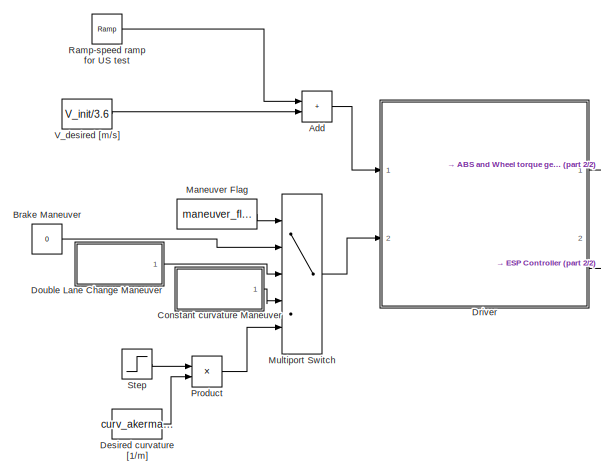
[diagram: root canvas - part 1/2, left side, full height]
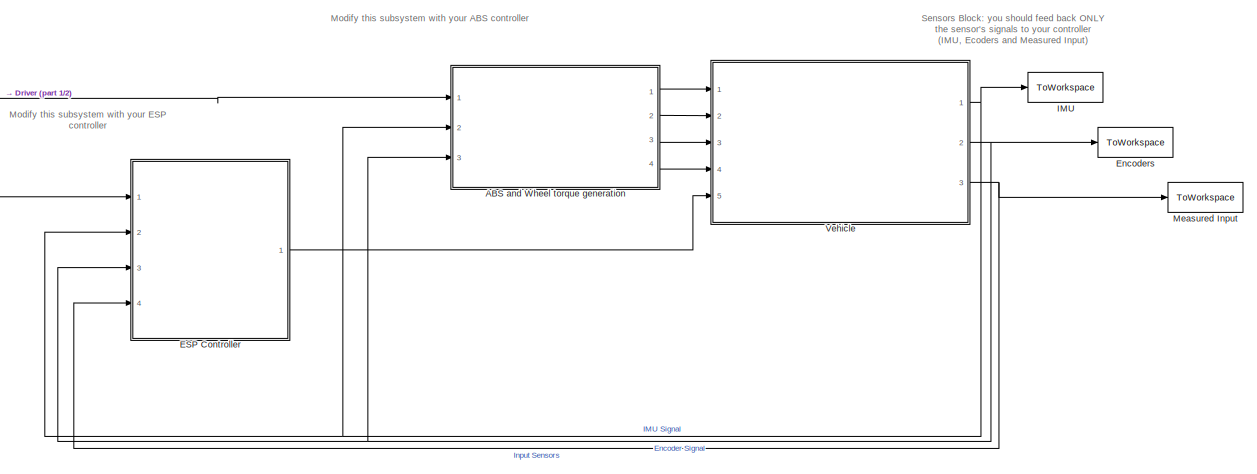
[diagram: root canvas - part 2/2, center side, full height]
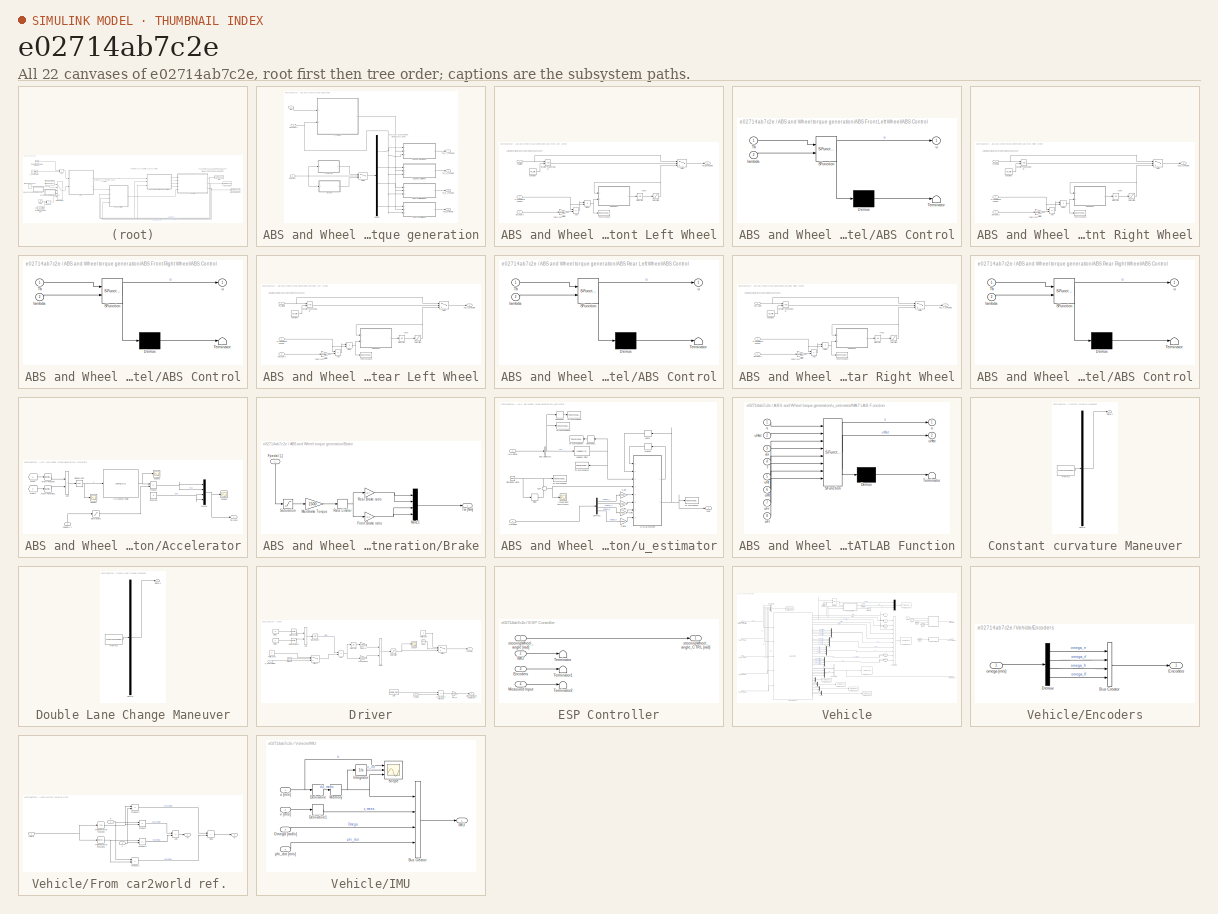
[diagram: thumbnail index - all 22 canvases of the model, root first then tree order]
MODEL slx_e02714ab7c2e
KIND model
CONFIG AbsTol = auto
CONFIG EnableMultiTasking = off
CONFIG FixedStep = auto
CONFIG MaxStep = 0.1
CONFIG MinStep = auto
CONFIG RelTol = 1e-3
CONFIG SampleTimeConstraint = Unconstrained
CONFIG Solver = ode23s
CONFIG SolverName = ode23s
CONFIG StartTime = 0.0
CONFIG StopTime = t_f
BLOCK [SubSystem] ABS and Wheel torque generation
  NameLocation = top
  Ports = [3, 4]
  RequestExecContextInheritance = off
BLOCK [SubSystem] ABS and Wheel torque generation/ABS Front Left Wheel
  Ports = [3, 1]
  RequestExecContextInheritance = off
BLOCK [SubSystem] ABS and Wheel torque generation/ABS Front Left Wheel/ABS Control
  ErrorFcn = Stateflow.Translate.translate
  PermitHierarchicalResolution = ExplicitOnly
  Ports = [2, 1]
  RequestExecContextInheritance = off
  SFBlockType = Chart
  TreatAsAtomicUnit = on
BLOCK [Demux] ABS and Wheel torque generation/ABS Front Left Wheel/ABS Control/ Demux 
  Outputs = 1
  Ports = [1, 1]
BLOCK [S-Function] ABS and Wheel torque generation/ABS Front Left Wheel/ABS Control/ SFunction 
  EnableBusSupport = on
  FunctionName = sf_sfun
  Parameters = Tb_max,Tb_min,k,lambda_max,lambda_min
  PortCounts = [2 2]
  Ports = [2, 2]
  SFcnIsStateOwnerBlock = off
  SFunctionDeploymentMode = off
  Tag = Stateflow S-Function 3
BLOCK [Terminator] ABS and Wheel torque generation/ABS Front Left Wheel/ABS Control/ Terminator 
BLOCK [Inport] ABS and Wheel torque generation/ABS Front Left Wheel/ABS Control/Tb
BLOCK [Inport] ABS and Wheel torque generation/ABS Front Left Wheel/ABS Control/lambda
  Port = 2
BLOCK [Outport] ABS and Wheel torque generation/ABS Front Left Wheel/ABS Control/u
  VectorParamsAs1DForOutWhenUnconnected = off
BLOCK [Sum] ABS and Wheel torque generation/ABS Front Left Wheel/Add
  IconShape = rectangular
  Inputs = -+
  Ports = [2, 1]
BLOCK [Constant] ABS and Wheel torque generation/ABS Front Left Wheel/Constant
  Value = Tb_min
BLOCK [Product] ABS and Wheel torque generation/ABS Front Left Wheel/Divide
  Inputs = */
  Ports = [2, 1]
BLOCK [Inport] ABS and Wheel torque generation/ABS Front Left Wheel/Encoders
  Port = 3
BLOCK [RelationalOperator] ABS and Wheel torque generation/ABS Front Left Wheel/GreaterThanOrEqual
  InputSameDT = off
  OutDataTypeStr = boolean
  Ports = [2, 1]
  RndMeth = Simplest
BLOCK [Integrator] ABS and Wheel torque generation/ABS Front Left Wheel/Integrator
  Ports = [1, 1]
BLOCK [Gain] ABS and Wheel torque generation/ABS Front Left Wheel/Multiply
  Gain = vehicle_data.front_wheel.Rr
BLOCK [Saturate] ABS and Wheel torque generation/ABS Front Left Wheel/Saturation
  LowerLimit = -3e3
  UpperLimit = 3e3
BLOCK [Switch] ABS and Wheel torque generation/ABS Front Left Wheel/Switch
  InputSameDT = off
  SaturateOnIntegerOverflow = off
  Threshold = 1
BLOCK [ToWorkspace] ABS and Wheel torque generation/ABS Front Left Wheel/To Workspace
  FixptAsFi = on
  MaxDataPoints = inf
  Ports = [1]
  SampleTime = -1
  Save2DSignal = 2-D array (concatenate along first dimension)
  VariableName = lambda_fl_ext
BLOCK [Inport] ABS and Wheel torque generation/ABS Front Left Wheel/Tw_fl [Nm]
BLOCK [Outport] ABS and Wheel torque generation/ABS Front Left Wheel/Tw_fl_CTRL [Nm]
  VectorParamsAs1DForOutWhenUnconnected = off
BLOCK [Inport] ABS and Wheel torque generation/ABS Front Left Wheel/u (vehicle long speed) 
  Port = 2
BLOCK [SubSystem] ABS and Wheel torque generation/ABS Front Right Wheel
  Ports = [3, 1]
  RequestExecContextInheritance = off
BLOCK [SubSystem] ABS and Wheel torque generation/ABS Front Right Wheel/ABS Control
  ErrorFcn = Stateflow.Translate.translate
  PermitHierarchicalResolution = ExplicitOnly
  Ports = [2, 1]
  RequestExecContextInheritance = off
  SFBlockType = Chart
  TreatAsAtomicUnit = on
BLOCK [Demux] ABS and Wheel torque generation/ABS Front Right Wheel/ABS Control/ Demux 
  Outputs = 1
  Ports = [1, 1]
BLOCK [S-Function] ABS and Wheel torque generation/ABS Front Right Wheel/ABS Control/ SFunction 
  EnableBusSupport = on
  FunctionName = sf_sfun
  Parameters = Tb_max,Tb_min,k,lambda_max,lambda_min
  PortCounts = [2 2]
  Ports = [2, 2]
  SFcnIsStateOwnerBlock = off
  SFunctionDeploymentMode = off
  Tag = Stateflow S-Function 2
BLOCK [Terminator] ABS and Wheel torque generation/ABS Front Right Wheel/ABS Control/ Terminator 
BLOCK [Inport] ABS and Wheel torque generation/ABS Front Right Wheel/ABS Control/Tb
BLOCK [Inport] ABS and Wheel torque generation/ABS Front Right Wheel/ABS Control/lambda
  Port = 2
BLOCK [Outport] ABS and Wheel torque generation/ABS Front Right Wheel/ABS Control/u
  VectorParamsAs1DForOutWhenUnconnected = off
BLOCK [Sum] ABS and Wheel torque generation/ABS Front Right Wheel/Add
  IconShape = rectangular
  Inputs = -+
  Ports = [2, 1]
BLOCK [Constant] ABS and Wheel torque generation/ABS Front Right Wheel/Constant
  Value = Tb_min
BLOCK [Product] ABS and Wheel torque generation/ABS Front Right Wheel/Divide
  Inputs = */
  Ports = [2, 1]
BLOCK [Inport] ABS and Wheel torque generation/ABS Front Right Wheel/Encoders
  Port = 3
BLOCK [RelationalOperator] ABS and Wheel torque generation/ABS Front Right Wheel/GreaterThanOrEqual
  InputSameDT = off
  OutDataTypeStr = boolean
  Ports = [2, 1]
  RndMeth = Simplest
BLOCK [Integrator] ABS and Wheel torque generation/ABS Front Right Wheel/Integrator
  Ports = [1, 1]
BLOCK [Gain] ABS and Wheel torque generation/ABS Front Right Wheel/Multiply
  Gain = vehicle_data.front_wheel.Rr
BLOCK [Saturate] ABS and Wheel torque generation/ABS Front Right Wheel/Saturation
  LowerLimit = -3e3
  UpperLimit = 3e3
BLOCK [Switch] ABS and Wheel torque generation/ABS Front Right Wheel/Switch
  InputSameDT = off
  SaturateOnIntegerOverflow = off
  Threshold = 1
BLOCK [ToWorkspace] ABS and Wheel torque generation/ABS Front Right Wheel/To Workspace
  FixptAsFi = on
  MaxDataPoints = inf
  Ports = [1]
  SampleTime = -1
  Save2DSignal = 2-D array (concatenate along first dimension)
  VariableName = lambda_fr_ext
BLOCK [Inport] ABS and Wheel torque generation/ABS Front Right Wheel/Tw_fr [Nm]
BLOCK [Outport] ABS and Wheel torque generation/ABS Front Right Wheel/Tw_fr_CTRL [Nm]
  VectorParamsAs1DForOutWhenUnconnected = off
BLOCK [Inport] ABS and Wheel torque generation/ABS Front Right Wheel/u (vehicle long speed) 
  Port = 2
BLOCK [SubSystem] ABS and Wheel torque generation/ABS Rear Left Wheel
  Ports = [3, 1]
  RequestExecContextInheritance = off
BLOCK [SubSystem] ABS and Wheel torque generation/ABS Rear Left Wheel/ABS Control
  ErrorFcn = Stateflow.Translate.translate
  PermitHierarchicalResolution = ExplicitOnly
  Ports = [2, 1]
  RequestExecContextInheritance = off
  SFBlockType = Chart
  TreatAsAtomicUnit = on
BLOCK [Demux] ABS and Wheel torque generation/ABS Rear Left Wheel/ABS Control/ Demux 
  Outputs = 1
  Ports = [1, 1]
BLOCK [S-Function] ABS and Wheel torque generation/ABS Rear Left Wheel/ABS Control/ SFunction 
  EnableBusSupport = on
  FunctionName = sf_sfun
  Parameters = Tb_max,Tb_min,k,lambda_max,lambda_min
  PortCounts = [2 2]
  Ports = [2, 2]
  SFcnIsStateOwnerBlock = off
  SFunctionDeploymentMode = off
  Tag = Stateflow S-Function 1
BLOCK [Terminator] ABS and Wheel torque generation/ABS Rear Left Wheel/ABS Control/ Terminator 
BLOCK [Inport] ABS and Wheel torque generation/ABS Rear Left Wheel/ABS Control/Tb
BLOCK [Inport] ABS and Wheel torque generation/ABS Rear Left Wheel/ABS Control/lambda
  Port = 2
BLOCK [Outport] ABS and Wheel torque generation/ABS Rear Left Wheel/ABS Control/u
  VectorParamsAs1DForOutWhenUnconnected = off
BLOCK [Sum] ABS and Wheel torque generation/ABS Rear Left Wheel/Add
  IconShape = rectangular
  Inputs = -+
  Ports = [2, 1]
BLOCK [Constant] ABS and Wheel torque generation/ABS Rear Left Wheel/Constant
  Value = Tb_min
BLOCK [Product] ABS and Wheel torque generation/ABS Rear Left Wheel/Divide
  Inputs = */
  Ports = [2, 1]
BLOCK [Inport] ABS and Wheel torque generation/ABS Rear Left Wheel/Encoders
  Port = 3
BLOCK [RelationalOperator] ABS and Wheel torque generation/ABS Rear Left Wheel/GreaterThanOrEqual
  InputSameDT = off
  OutDataTypeStr = boolean
  Ports = [2, 1]
  RndMeth = Simplest
BLOCK [Integrator] ABS and Wheel torque generation/ABS Rear Left Wheel/Integrator
  Ports = [1, 1]
BLOCK [Gain] ABS and Wheel torque generation/ABS Rear Left Wheel/Multiply
  Gain = vehicle_data.rear_wheel.Rr
BLOCK [Saturate] ABS and Wheel torque generation/ABS Rear Left Wheel/Saturation
  LowerLimit = -3e3
  UpperLimit = 3e3
BLOCK [Switch] ABS and Wheel torque generation/ABS Rear Left Wheel/Switch
  InputSameDT = off
  SaturateOnIntegerOverflow = off
  Threshold = 1
BLOCK [ToWorkspace] ABS and Wheel torque generation/ABS Rear Left Wheel/To Workspace
  FixptAsFi = on
  MaxDataPoints = inf
  Ports = [1]
  SampleTime = -1
  Save2DSignal = 2-D array (concatenate along first dimension)
  VariableName = lambda_rl_ext
BLOCK [Inport] ABS and Wheel torque generation/ABS Rear Left Wheel/Tw_rl [Nm]
BLOCK [Outport] ABS and Wheel torque generation/ABS Rear Left Wheel/Tw_rl_CTRL [Nm]
  VectorParamsAs1DForOutWhenUnconnected = off
BLOCK [Inport] ABS and Wheel torque generation/ABS Rear Left Wheel/u (vehicle long speed) 
  Port = 2
BLOCK [SubSystem] ABS and Wheel torque generation/ABS Rear Right Wheel
  Ports = [3, 1]
  RequestExecContextInheritance = off
BLOCK [SubSystem] ABS and Wheel torque generation/ABS Rear Right Wheel/ABS Control
  ErrorFcn = Stateflow.Translate.translate
  PermitHierarchicalResolution = ExplicitOnly
  Ports = [2, 1]
  RequestExecContextInheritance = off
  SFBlockType = Chart
  TreatAsAtomicUnit = on
BLOCK [Demux] ABS and Wheel torque generation/ABS Rear Right Wheel/ABS Control/ Demux 
  Outputs = 1
  Ports = [1, 1]
BLOCK [S-Function] ABS and Wheel torque generation/ABS Rear Right Wheel/ABS Control/ SFunction 
  EnableBusSupport = on
  FunctionName = sf_sfun
  Parameters = Tb_max,Tb_min,k,lambda_max,lambda_min
  PortCounts = [2 2]
  Ports = [2, 2]
  SFcnIsStateOwnerBlock = off
  SFunctionDeploymentMode = off
  Tag = Stateflow S-Function 13
BLOCK [Terminator] ABS and Wheel torque generation/ABS Rear Right Wheel/ABS Control/ Terminator 
BLOCK [Inport] ABS and Wheel torque generation/ABS Rear Right Wheel/ABS Control/Tb
BLOCK [Inport] ABS and Wheel torque generation/ABS Rear Right Wheel/ABS Control/lambda
  Port = 2
BLOCK [Outport] ABS and Wheel torque generation/ABS Rear Right Wheel/ABS Control/u
  VectorParamsAs1DForOutWhenUnconnected = off
BLOCK [Sum] ABS and Wheel torque generation/ABS Rear Right Wheel/Add
  IconShape = rectangular
  Inputs = -+
  Ports = [2, 1]
BLOCK [Constant] ABS and Wheel torque generation/ABS Rear Right Wheel/Constant
  Value = Tb_min
BLOCK [Product] ABS and Wheel torque generation/ABS Rear Right Wheel/Divide
  Inputs = */
  Ports = [2, 1]
BLOCK [Inport] ABS and Wheel torque generation/ABS Rear Right Wheel/Encoders
  Port = 3
BLOCK [RelationalOperator] ABS and Wheel torque generation/ABS Rear Right Wheel/GreaterThanOrEqual
  InputSameDT = off
  OutDataTypeStr = boolean
  Ports = [2, 1]
  RndMeth = Simplest
BLOCK [Integrator] ABS and Wheel torque generation/ABS Rear Right Wheel/Integrator
  Ports = [1, 1]
BLOCK [Gain] ABS and Wheel torque generation/ABS Rear Right Wheel/Multiply
  Gain = vehicle_data.rear_wheel.Rr
BLOCK [Saturate] ABS and Wheel torque generation/ABS Rear Right Wheel/Saturation
  LowerLimit = -3e3
  UpperLimit = 3e3
BLOCK [Switch] ABS and Wheel torque generation/ABS Rear Right Wheel/Switch
  InputSameDT = off
  SaturateOnIntegerOverflow = off
  Threshold = 1
BLOCK [ToWorkspace] ABS and Wheel torque generation/ABS Rear Right Wheel/To Workspace
  FixptAsFi = on
  MaxDataPoints = inf
  Ports = [1]
  SampleTime = -1
  Save2DSignal = 2-D array (concatenate along first dimension)
  VariableName = lambda_rr_ext
BLOCK [Inport] ABS and Wheel torque generation/ABS Rear Right Wheel/Tw_rr [Nm]
BLOCK [Outport] ABS and Wheel torque generation/ABS Rear Right Wheel/Tw_rr_CTRL [Nm]
  VectorParamsAs1DForOutWhenUnconnected = off
BLOCK [Inport] ABS and Wheel torque generation/ABS Rear Right Wheel/u (vehicle long speed) 
  Port = 2
BLOCK [SubSystem] ABS and Wheel torque generation/Accelerator
  Ports = [1, 1]
  RequestExecContextInheritance = off
BLOCK [Lookup_n-D] ABS and Wheel torque generation/Accelerator/1-D Lookup Table
  BreakpointsForDimension1 = linspace(0,250/3.6,31)
  InternalRulePriority = Speed
  NumberOfTableDimensions = 1
  Ports = [1, 1]
  RndMeth = Simplest
  Table = 500*[0.442662657646371\n0.537281800718283\n0.631900943790195\n0.726520086862107\n0.821139229934018\n0.859929256634989\n0.897666213627126\n0.918905078514199\n0.939980602614386\n0.959177707665377\n0.977316148834879\n0.987691054873465\n0.996795820900055\n1\n0.995733117962017\n0.989286574404060\n0.982840030846103\n0.974205033220170\n0.965525373266320\n0.956088102993640\n0.944254781591915\n0.930421573540466\n0.9134749195078...<+131ch>
BLOCK [Sum] ABS and Wheel torque generation/Accelerator/Add
  IconShape = rectangular
  Ports = [2, 1]
BLOCK [Constant] ABS and Wheel torque generation/Accelerator/Constant
  Value = 0
BLOCK [Inport] ABS and Wheel torque generation/Accelerator/Fpedal [-]
  NameLocation = right
BLOCK [From] ABS and Wheel torque generation/Accelerator/From
  GotoTag = u
  TagVisibility = global
BLOCK [From] ABS and Wheel torque generation/Accelerator/From1
  GotoTag = v
  TagVisibility = global
BLOCK [Math] ABS and Wheel torque generation/Accelerator/Math Function
  Operator = magnitude^2
  Ports = [1, 1]
  SignedPower = on
BLOCK [Math] ABS and Wheel torque generation/Accelerator/Math Function1
  Operator = magnitude^2
  Ports = [1, 1]
  SignedPower = on
BLOCK [Mux] ABS and Wheel torque generation/Accelerator/Mux10
  DisplayOption = bar
  Ports = [4, 1]
BLOCK [Product] ABS and Wheel torque generation/Accelerator/Product
  Ports = [2, 1]
BLOCK [Saturate] ABS and Wheel torque generation/Accelerator/Saturation1
  LowerLimit = 0
  UpperLimit = 1
BLOCK [Scope] ABS and Wheel torque generation/Accelerator/Scope3
  Floating = off
  NumInputPorts = 1
  Ports = [1]
  ScopeSpecificationString = Simulink.scopes.TimeScopeBlockCfg('CurrentConfiguration', extmgr.ConfigurationSet(extmgr.Configuration('Core','General UI',true),extmgr.Configuration('Core','Source UI',true),extmgr.Configuration('Sources','WiredSimulink',true,'DataLoggingVariableName','ScopeData6'),extmgr.Configuration('Visuals','Time Domain',true,'SerializedDisplays',{struct('MinYLimReal','-5.87431','MaxYLimReal','52.86875','YLa...<+1414ch>
BLOCK [Scope] ABS and Wheel torque generation/Accelerator/Scope4
  Floating = off
  NumInputPorts = 1
  Ports = [1]
  ScopeSpecificationString = Simulink.scopes.TimeScopeBlockCfg('CurrentConfiguration', extmgr.ConfigurationSet(extmgr.Configuration('Core','General UI',true),extmgr.Configuration('Core','Source UI',true),extmgr.Configuration('Sources','WiredSimulink',true,'DataLoggingVariableName','ScopeData7'),extmgr.Configuration('Visuals','Time Domain',true,'SerializedDisplays',{struct('MinYLimReal','-1.72452','MaxYLimReal','24.08352','YLa...<+1390ch>
BLOCK [Scope] ABS and Wheel torque generation/Accelerator/Scope5
  Floating = off
  NumInputPorts = 1
  Ports = [1]
  ScopeSpecificationString = Simulink.scopes.TimeScopeBlockCfg('CurrentConfiguration', extmgr.ConfigurationSet(extmgr.Configuration('Core','General UI',true),extmgr.Configuration('Core','Source UI',true),extmgr.Configuration('Sources','WiredSimulink',true,'DataLoggingVariableName','ScopeData8'),extmgr.Configuration('Visuals','Time Domain',true,'SerializedDisplays',{struct('MinYLimReal','254.13013','MaxYLimReal','454.13013','Y...<+1415ch>
BLOCK [Sqrt] ABS and Wheel torque generation/Accelerator/Signed Sqrt
BLOCK [Outport] ABS and Wheel torque generation/Accelerator/Tw [Nm]
  VectorParamsAs1DForOutWhenUnconnected = off
BLOCK [SubSystem] ABS and Wheel torque generation/Brake
  Ports = [1, 1]
  RequestExecContextInheritance = off
BLOCK [Inport] ABS and Wheel torque generation/Brake/Fpedal [-]
  NameLocation = right
BLOCK [Gain] ABS and Wheel torque generation/Brake/Front Brake ratio
  Gain = 0.3
BLOCK [Gain] ABS and Wheel torque generation/Brake/Max Brake Torque
  Gain = 1500
BLOCK [Mux] ABS and Wheel torque generation/Brake/Mux11
  DisplayOption = bar
  Ports = [4, 1]
BLOCK [RateLimiter] ABS and Wheel torque generation/Brake/Rate Limiter
  FallingSlewLimit = -10000
  RisingSlewLimit = 1e5
  SampleTimeMode = inherited
BLOCK [Gain] ABS and Wheel torque generation/Brake/Rear Brake ratio
  Gain = 0.7
BLOCK [Saturate] ABS and Wheel torque generation/Brake/Saturation
  LowerLimit = -1
  UpperLimit = 0
BLOCK [Outport] ABS and Wheel torque generation/Brake/Tw [Nm]
  VectorParamsAs1DForOutWhenUnconnected = off
BLOCK [Demux] ABS and Wheel torque generation/Demux
  Ports = [1, 4]
BLOCK [Inport] ABS and Wheel torque generation/Encoders
  Port = 3
BLOCK [Inport] ABS and Wheel torque generation/Fpedal [-]
BLOCK [Inport] ABS and Wheel torque generation/IMU
  Port = 2
BLOCK [Switch] ABS and Wheel torque generation/Switch
  InputSameDT = off
  SaturateOnIntegerOverflow = off
BLOCK [Outport] ABS and Wheel torque generation/Tw_fl_CTRL [Nm]
  Port = 4
  VectorParamsAs1DForOutWhenUnconnected = off
BLOCK [Outport] ABS and Wheel torque generation/Tw_fr_CTRL [Nm]
  Port = 3
  VectorParamsAs1DForOutWhenUnconnected = off
BLOCK [Outport] ABS and Wheel torque generation/Tw_rl_CTRL [Nm]
  Port = 2
  VectorParamsAs1DForOutWhenUnconnected = off
BLOCK [Outport] ABS and Wheel torque generation/Tw_rr_CTRL [Nm]
  VectorParamsAs1DForOutWhenUnconnected = off
BLOCK [SubSystem] ABS and Wheel torque generation/u_estimator
  Ports = [2, 1]
  RequestExecContextInheritance = off
BLOCK [BusSelector] ABS and Wheel torque generation/u_estimator/Bus Selector1
  OutputSignals = ax
  Ports = [1, 1]
BLOCK [Memory] ABS and Wheel torque generation/u_estimator/Delay
  InheritSampleTime = on
BLOCK [Demux] ABS and Wheel torque generation/u_estimator/Demux2
  Ports = [1, 4]
BLOCK [Derivative] ABS and Wheel torque generation/u_estimator/Derivative
BLOCK [Derivative] ABS and Wheel torque generation/u_estimator/Derivative1
  NameLocation = top
BLOCK [Gain] ABS and Wheel torque generation/u_estimator/Gain
  Gain = vehicle_data.rear_wheel.Rr
BLOCK [Gain] ABS and Wheel torque generation/u_estimator/Gain1
  Gain = vehicle_data.rear_wheel.Rr
BLOCK [Gain] ABS and Wheel torque generation/u_estimator/Gain2
  Gain = vehicle_data.front_wheel.Rf
BLOCK [Gain] ABS and Wheel torque generation/u_estimator/Gain3
  Gain = vehicle_data.front_wheel.Rf
BLOCK [Inport] ABS and Wheel torque generation/u_estimator/IMU signal
BLOCK [Scope] ABS and Wheel torque generation/u_estimator/Integration time-stamp
  Floating = off
  NumInputPorts = 1
  Ports = [1]
  ScopeSpecificationString = Simulink.scopes.TimeScopeBlockCfg('CurrentConfiguration', extmgr.ConfigurationSet(extmgr.Configuration('Core','General UI',true),extmgr.Configuration('Core','Source UI',true),extmgr.Configuration('Sources','WiredSimulink',true,'DataLoggingVariableName','ScopeData1'),extmgr.Configuration('Visuals','Time Domain',true,'SerializedDisplays',{struct('MinYLimReal','-0.00013','MaxYLimReal','0.00113','YLab...<+1381ch>
BLOCK [Reference] ABS and Wheel torque generation/u_estimator/Lowpass Filter  REF=dspfdesign/Lowpass Filter
  Ports = [1, 1]
  SourceBlock = dspfdesign/Lowpass Filter
  SourceProductBaseCode = DS
  SourceType = dsp.LowpassFilter
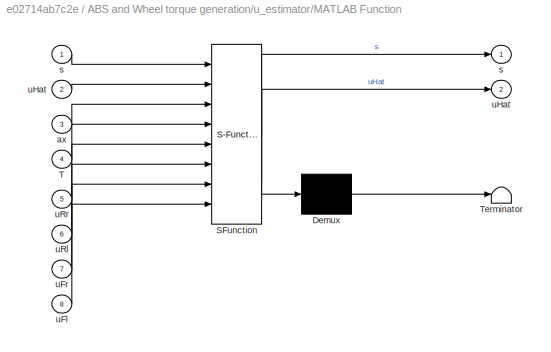
BLOCK [SubSystem] ABS and Wheel torque generation/u_estimator/MATLAB Function
  ErrorFcn = Stateflow.Translate.translate
  PermitHierarchicalResolution = ExplicitOnly
  Ports = [8, 2]
  RequestExecContextInheritance = off
  SFBlockType = MATLAB Function
  TreatAsAtomicUnit = on
BLOCK [Demux] ABS and Wheel torque generation/u_estimator/MATLAB Function/ Demux 
  Outputs = 1
  Ports = [1, 1]
BLOCK [S-Function] ABS and Wheel torque generation/u_estimator/MATLAB Function/ SFunction 
  EnableBusSupport = on
  FunctionName = sf_sfun
  PortCounts = [8 3]
  Ports = [8, 3]
  SFcnIsStateOwnerBlock = off
  SFunctionDeploymentMode = off
  Tag = Stateflow S-Function 10
BLOCK [Terminator] ABS and Wheel torque generation/u_estimator/MATLAB Function/ Terminator 
BLOCK [Inport] ABS and Wheel torque generation/u_estimator/MATLAB Function/T
  Port = 4
BLOCK [Inport] ABS and Wheel torque generation/u_estimator/MATLAB Function/ax
  Port = 3
BLOCK [Outport] ABS and Wheel torque generation/u_estimator/MATLAB Function/s
  VectorParamsAs1DForOutWhenUnconnected = off
BLOCK [Inport] ABS and Wheel torque generation/u_estimator/MATLAB Function/s 
BLOCK [Inport] ABS and Wheel torque generation/u_estimator/MATLAB Function/uFl
  Port = 8
BLOCK [Inport] ABS and Wheel torque generation/u_estimator/MATLAB Function/uFr
  Port = 7
BLOCK [Outport] ABS and Wheel torque generation/u_estimator/MATLAB Function/uHat
  Port = 2
  VectorParamsAs1DForOutWhenUnconnected = off
BLOCK [Inport] ABS and Wheel torque generation/u_estimator/MATLAB Function/uHat 
  Port = 2
BLOCK [Inport] ABS and Wheel torque generation/u_estimator/MATLAB Function/uRl
  Port = 6
BLOCK [Inport] ABS and Wheel torque generation/u_estimator/MATLAB Function/uRr
  Port = 5
BLOCK [Inport] ABS and Wheel torque generation/u_estimator/Omegas
  Port = 2
BLOCK [Clock] ABS and Wheel torque generation/u_estimator/Simulation clock
BLOCK [Sum] ABS and Wheel torque generation/u_estimator/Sum
  Inputs = +-
  Ports = [2, 1]
BLOCK [ToWorkspace] ABS and Wheel torque generation/u_estimator/To Workspace
  FixptAsFi = on
  MaxDataPoints = inf
  Ports = [1]
  SampleTime = -1
  Save2DSignal = 2-D array (concatenate along first dimension)
  VariableName = uHat
BLOCK [ToWorkspace] ABS and Wheel torque generation/u_estimator/To Workspace1
  FixptAsFi = on
  MaxDataPoints = inf
  Ports = [1]
  SampleTime = -1
  Save2DSignal = 2-D array (concatenate along first dimension)
  VariableName = ax
BLOCK [ToWorkspace] ABS and Wheel torque generation/u_estimator/To Workspace2
  FixptAsFi = on
  MaxDataPoints = inf
  Ports = [1]
  SampleTime = -1
  Save2DSignal = 2-D array (concatenate along first dimension)
  VariableName = jerk
BLOCK [ToWorkspace] ABS and Wheel torque generation/u_estimator/To Workspace3
  FixptAsFi = on
  MaxDataPoints = inf
  NameLocation = top
  Ports = [1]
  SampleTime = -1
  Save2DSignal = 2-D array (concatenate along first dimension)
  VariableName = ax_filt
BLOCK [ToWorkspace] ABS and Wheel torque generation/u_estimator/To Workspace4
  FixptAsFi = on
  MaxDataPoints = inf
  NameLocation = top
  Ports = [1]
  SampleTime = -1
  Save2DSignal = 2-D array (concatenate along first dimension)
  VariableName = jerk_filt
BLOCK [ToWorkspace] ABS and Wheel torque generation/u_estimator/To Workspace5
  FixptAsFi = on
  MaxDataPoints = inf
  Ports = [1]
  SampleTime = -1
  Save2DSignal = 2-D array (concatenate along first dimension)
  VariableName = timeVector1
BLOCK [Memory] ABS and Wheel torque generation/u_estimator/Uhat0
  InitialCondition = init_conditions_data.longSpeed
  NameLocation = top
BLOCK [Memory] ABS and Wheel torque generation/u_estimator/state0
  NameLocation = top
BLOCK [Outport] ABS and Wheel torque generation/u_estimator/uHat
  VectorParamsAs1DForOutWhenUnconnected = off
BLOCK [Sum] Add
  IconShape = rectangular
  Ports = [2, 1]
BLOCK [Constant] Brake Maneuver
  NameLocation = top
  Value = 0
BLOCK [SubSystem] Constant curvature Maneuver
  ClipboardFcn = sigbuilder_block('clipboard');
  CloseFcn = sigbuilder_block('close');
  ContinueFcn = sigbuilder_block('continue');
  CopyFcn = sigbuilder_block('copy');
  DeleteFcn = sigbuilder_block('delete');
  LoadFcn = sigbuilder_block('load');
  MaskHideContents = on
  ModelCloseFcn = sigbuilder_block('modelClose');
  NameChangeFcn = sigbuilder_block('namechange');
  OpenFcn = sigbuilder_block('open',[0 0 1319 754 ]);
  PauseFcn = sigbuilder_block('pause');
  Ports = [0, 1]
  PreSaveFcn = sigbuilder_block('preSave');
  RequestExecContextInheritance = off
  StartFcn = sigbuilder_block('start');
  StopFcn = sigbuilder_block('stop');
  Tag = STV Subsys
BLOCK [Demux] Constant curvature Maneuver/Demux
  DisplayOption = none
  Outputs = 1
  Ports = [1, 1]
  Tag = STV Demux
BLOCK [FromWorkspace] Constant curvature Maneuver/FromWs
  Tag = STV FromWs
  VariableName = tuvar
BLOCK [Outport] Constant curvature Maneuver/Signal 1
  Tag = STV Outport
  VectorParamsAs1DForOutWhenUnconnected = off
BLOCK [Constant] Desired curvature  [1//m]
  Value = curv_akermann
BLOCK [SubSystem] Double Lane Change Maneuver
  ClipboardFcn = sigbuilder_block('clipboard');
  CloseFcn = sigbuilder_block('close');
  ContinueFcn = sigbuilder_block('continue');
  CopyFcn = sigbuilder_block('copy');
  DeleteFcn = sigbuilder_block('delete');
  LoadFcn = sigbuilder_block('load');
  MaskHideContents = on
  ModelCloseFcn = sigbuilder_block('modelClose');
  NameChangeFcn = sigbuilder_block('namechange');
  OpenFcn = sigbuilder_block('open',[0 0 1280 649 ]);
  PauseFcn = sigbuilder_block('pause');
  Ports = [0, 1]
  PreSaveFcn = sigbuilder_block('preSave');
  RequestExecContextInheritance = off
  StartFcn = sigbuilder_block('start');
  StopFcn = sigbuilder_block('stop');
  Tag = STV Subsys
BLOCK [Demux] Double Lane Change Maneuver/Demux
  DisplayOption = none
  Outputs = 1
  Ports = [1, 1]
  Tag = STV Demux
BLOCK [FromWorkspace] Double Lane Change Maneuver/FromWs
  Tag = STV FromWs
  VariableName = tuvar
BLOCK [Outport] Double Lane Change Maneuver/Signal 1
  Tag = STV Outport
  VectorParamsAs1DForOutWhenUnconnected = off
BLOCK [SubSystem] Driver
  Ports = [2, 2]
  RequestExecContextInheritance = off
BLOCK [Product] Driver/Ackermann steering
  Inputs = **
  Ports = [2, 1]
BLOCK [Sum] Driver/Add
  IconShape = rectangular
  Ports = [2, 1]
BLOCK [Sum] Driver/Add1
  IconShape = rectangular
  Inputs = -+
  Ports = [2, 1]
BLOCK [Sum] Driver/Add2
  IconShape = rectangular
  Ports = [2, 1]
BLOCK [Clock] Driver/Clock
  NameLocation = top
BLOCK [Clock] Driver/Clock1
  NameLocation = top
BLOCK [Outport] Driver/Fpedal [-]
  VectorParamsAs1DForOutWhenUnconnected = off
BLOCK [Constant] Driver/Full Brake
  NameLocation = top
  Value = -1
BLOCK [Constant] Driver/Full Brake1
  NameLocation = top
  Value = 0
BLOCK [Gain] Driver/Integral
  Gain = 3.6/50
BLOCK [Integrator] Driver/Integrator
  Ports = [1, 1]
BLOCK [Constant] Driver/L [m]
  Value = vehicle_data.vehicle.L
BLOCK [Math] Driver/Math Function
  Operator = magnitude^2
  Ports = [1, 1]
  SignedPower = on
BLOCK [Math] Driver/Math Function1
  Operator = magnitude^2
  Ports = [1, 1]
  SignedPower = on
BLOCK [Gain] Driver/Proportional
  Gain = 3.6/50
BLOCK [Saturate] Driver/Saturation
  LowerLimit = -1
  UpperLimit = 1
BLOCK [Scope] Driver/Scope4
  Floating = off
  NumInputPorts = 1
  Ports = [1]
  ScopeSpecificationString = Simulink.scopes.TimeScopeBlockCfg('CurrentConfiguration', extmgr.ConfigurationSet(extmgr.Configuration('Core','General UI',true),extmgr.Configuration('Core','Source UI',true),extmgr.Configuration('Sources','WiredSimulink',true,'DataLoggingVariableName','ScopeData9'),extmgr.Configuration('Visuals','Time Domain',true,'SerializedDisplays',{struct('MinYLimReal','-1.25','MaxYLimReal','1.25','YLabelReal...<+1395ch>
BLOCK [Sqrt] Driver/Signed Sqrt
BLOCK [Switch] Driver/Switch
  InputSameDT = off
  SaturateOnIntegerOverflow = off
  Threshold = t_brake
BLOCK [Switch] Driver/Switch1
  InputSameDT = off
  SaturateOnIntegerOverflow = off
  Threshold = t_brake
BLOCK [Inport] Driver/V_desired [m//s]
BLOCK [Inport] Driver/rho [1//m]
  Port = 2
BLOCK [Outport] Driver/steeringWheel_angle [rad]
  Port = 2
  VectorParamsAs1DForOutWhenUnconnected = off
BLOCK [Gain] Driver/tau_D
  Gain = vehicle_data.steering_system.tau_D
BLOCK [From] Driver/u [m//s]
  GotoTag = u
  TagVisibility = global
BLOCK [From] Driver/v [m//s]
  GotoTag = v
  TagVisibility = global
BLOCK [SubSystem] ESP Controller
  Ports = [4, 1]
  RequestExecContextInheritance = off
BLOCK [Inport] ESP Controller/Encoders
  Port = 3
BLOCK [Inport] ESP Controller/IMU
  Port = 2
BLOCK [Inport] ESP Controller/Measured Input
  Port = 4
BLOCK [Terminator] ESP Controller/Terminator
BLOCK [Terminator] ESP Controller/Terminator1
BLOCK [Terminator] ESP Controller/Terminator2
BLOCK [Inport] ESP Controller/steeringWheel_angle [rad]
BLOCK [Outport] ESP Controller/steeringWheel_angle_CTRL [rad]
  VectorParamsAs1DForOutWhenUnconnected = off
BLOCK [ToWorkspace] Encoders
  FixptAsFi = on
  MaxDataPoints = inf
  Ports = [1]
  SampleTime = -1
  SaveFormat = Timeseries
  VariableName = Encoders
BLOCK [ToWorkspace] IMU
  FixptAsFi = on
  MaxDataPoints = inf
  Ports = [1]
  SampleTime = -1
  SaveFormat = Timeseries
  VariableName = IMU
BLOCK [Constant] Maneuver Flag
  NameLocation = top
  Value = maneuver_flag
BLOCK [ToWorkspace] Measured Input
  FixptAsFi = on
  MaxDataPoints = inf
  Ports = [1]
  SampleTime = -1
  SaveFormat = Timeseries
  VariableName = MeasuredInput
BLOCK [MultiPortSwitch] Multiport Switch
  InputSameDT = off
  Inputs = 4
  Ports = [5, 1]
  SaturateOnIntegerOverflow = off
BLOCK [Product] Product
  Ports = [2, 1]
BLOCK [Reference] Ramp-speed ramp for US test  REF=simulink/Sources/Ramp
  Ports = [0, 1]
  SourceBlock = simulink/Sources/Ramp
  SourceProductBaseCode = SL
  SourceType = Ramp
BLOCK [Step] Step
  SampleTime = 0
BLOCK [Constant] V_desired [m//s]
  Value = V_init/3.6
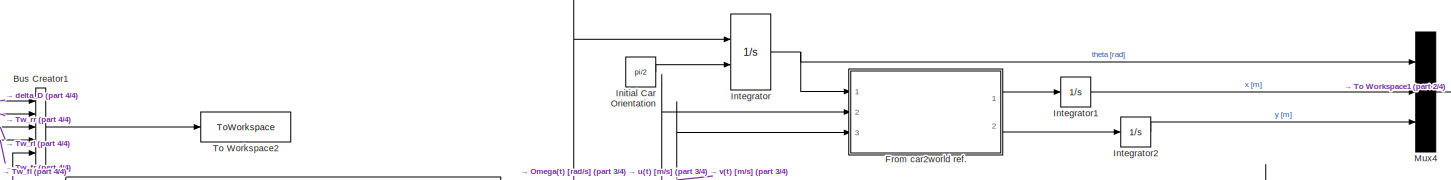
[diagram: Vehicle - part 1/4, top center region]
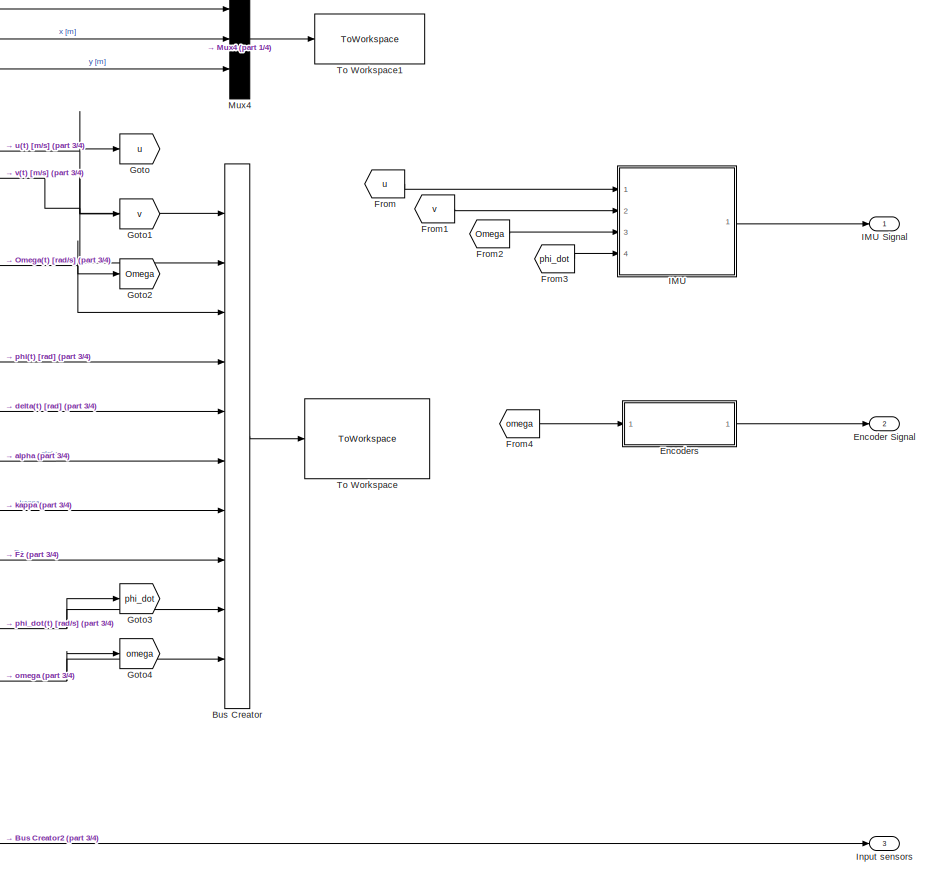
[diagram: Vehicle - part 2/4, middle right region]
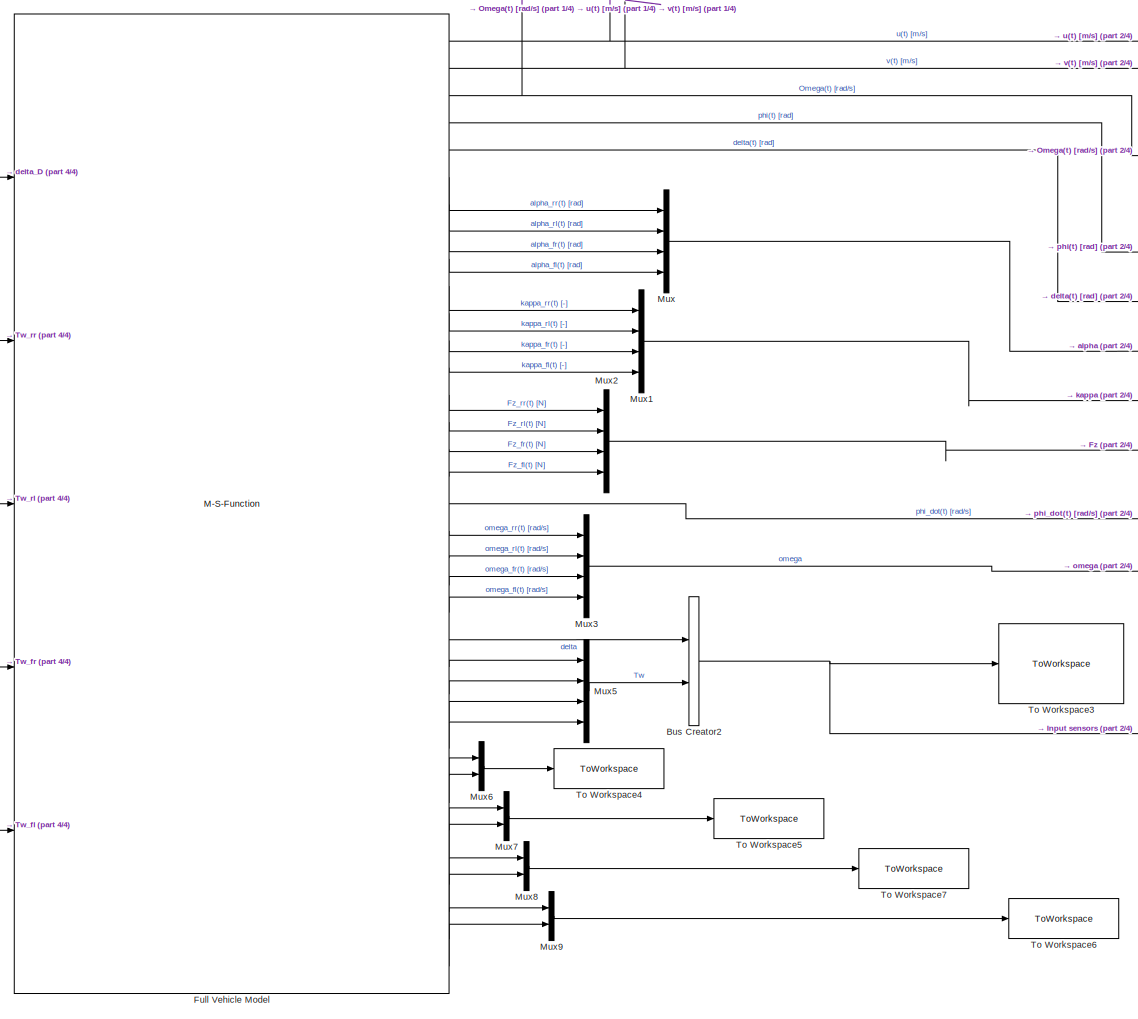
[diagram: Vehicle - part 3/4, center side, full height]
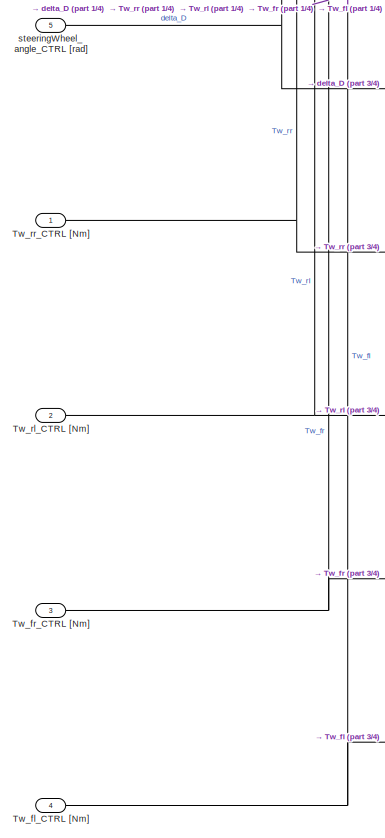
[diagram: Vehicle - part 4/4, middle left region]
BLOCK [SubSystem] Vehicle
  Ports = [5, 3]
  RequestExecContextInheritance = off
BLOCK [BusCreator] Vehicle/Bus Creator
  DisplayOption = bar
  InheritFromInputs = on
  Inputs = 10
  Ports = [10, 1]
BLOCK [BusCreator] Vehicle/Bus Creator1
  DisplayOption = bar
  InheritFromInputs = on
  Inputs = 5
  Ports = [5, 1]
BLOCK [BusCreator] Vehicle/Bus Creator2
  DisplayOption = bar
  InheritFromInputs = on
  Inputs = 2
  Ports = [2, 1]
BLOCK [Outport] Vehicle/Encoder Signal
  Port = 2
  VectorParamsAs1DForOutWhenUnconnected = off
BLOCK [SubSystem] Vehicle/Encoders
  Ports = [1, 1]
  RequestExecContextInheritance = off
BLOCK [BusCreator] Vehicle/Encoders/Bus Creator
  DisplayOption = bar
  InheritFromInputs = on
  Inputs = 4
  Ports = [4, 1]
BLOCK [Demux] Vehicle/Encoders/Demux
  Ports = [1, 4]
BLOCK [Outport] Vehicle/Encoders/Encoders
  VectorParamsAs1DForOutWhenUnconnected = off
BLOCK [Inport] Vehicle/Encoders/omega [m//s]
BLOCK [From] Vehicle/From
  GotoTag = u
  TagVisibility = global
BLOCK [SubSystem] Vehicle/From car2world ref. 
  Ports = [3, 2]
  RequestExecContextInheritance = off
BLOCK [Sum] Vehicle/From car2world ref. /Add
  IconShape = rectangular
  Inputs = +-
  Ports = [2, 1]
BLOCK [Sum] Vehicle/From car2world ref. /Add1
  IconShape = rectangular
  Ports = [2, 1]
BLOCK [Product] Vehicle/From car2world ref. /Product
  Ports = [2, 1]
BLOCK [Product] Vehicle/From car2world ref. /Product1
  Ports = [2, 1]
BLOCK [Product] Vehicle/From car2world ref. /Product2
  Ports = [2, 1]
BLOCK [Product] Vehicle/From car2world ref. /Product3
  Ports = [2, 1]
BLOCK [Trigonometry] Vehicle/From car2world ref. /Trigonometric Function
  Operator = cos
  Ports = [1, 1]
BLOCK [Trigonometry] Vehicle/From car2world ref. /Trigonometric Function1
  Ports = [1, 1]
BLOCK [Outport] Vehicle/From car2world ref. /Vx
  VectorParamsAs1DForOutWhenUnconnected = off
BLOCK [Outport] Vehicle/From car2world ref. /Vy
  Port = 2
  VectorParamsAs1DForOutWhenUnconnected = off
BLOCK [Inport] Vehicle/From car2world ref. /theta
BLOCK [Inport] Vehicle/From car2world ref. /u
  NameLocation = top
  Port = 2
BLOCK [Inport] Vehicle/From car2world ref. /v
  Port = 3
BLOCK [From] Vehicle/From1
  GotoTag = v
  TagVisibility = global
BLOCK [From] Vehicle/From2
  GotoTag = Omega
  TagVisibility = global
BLOCK [From] Vehicle/From3
  GotoTag = phi_dot
  TagVisibility = global
BLOCK [From] Vehicle/From4
  GotoTag = omega
  TagVisibility = global
BLOCK [M-S-Function] Vehicle/Full Vehicle Model
  FunctionName = FullVehicleModel_V3_sfun
  Parameters = vehicle_data, init_conditions_data, auxiliary_data
  Ports = [5, 35]
BLOCK [Goto] Vehicle/Goto
  GotoTag = u
  TagVisibility = global
BLOCK [Goto] Vehicle/Goto1
  GotoTag = v
  TagVisibility = global
BLOCK [Goto] Vehicle/Goto2
  GotoTag = Omega
  TagVisibility = global
BLOCK [Goto] Vehicle/Goto3
  GotoTag = phi_dot
  TagVisibility = global
BLOCK [Goto] Vehicle/Goto4
  GotoTag = omega
  TagVisibility = global
BLOCK [SubSystem] Vehicle/IMU
  Ports = [4, 1]
  RequestExecContextInheritance = off
BLOCK [Outport] Vehicle/IMU Signal
  VectorParamsAs1DForOutWhenUnconnected = off
BLOCK [BusCreator] Vehicle/IMU/Bus Creator
  DisplayOption = bar
  InheritFromInputs = on
  Inputs = 4
  Ports = [4, 1]
BLOCK [Derivative] Vehicle/IMU/Derivative
BLOCK [Derivative] Vehicle/IMU/Derivative1
BLOCK [Outport] Vehicle/IMU/IMU
  VectorParamsAs1DForOutWhenUnconnected = off
BLOCK [Integrator] Vehicle/IMU/Integrator
  InitialCondition = V_init/3.6
  Ports = [1, 1]
BLOCK [Memory] Vehicle/IMU/Memory
BLOCK [Inport] Vehicle/IMU/Omega [rad//s]
  Port = 3
BLOCK [Scope] Vehicle/IMU/Scope
  Floating = off
  NumInputPorts = 3
  Ports = [3]
  ScopeSpecificationString = Simulink.scopes.TimeScopeBlockCfg('CurrentConfiguration', extmgr.ConfigurationSet(extmgr.Configuration('Core','General UI',true),extmgr.Configuration('Core','Source UI',true),extmgr.Configuration('Sources','WiredSimulink',true,'DataLoggingVariableName','ScopeData1'),extmgr.Configuration('Visuals','Time Domain',true,'SerializedDisplays',{struct('MinYLimReal','-2.43249','MaxYLimReal','15.70238','YLa...<+2821ch>
BLOCK [Inport] Vehicle/IMU/phi_dot [m//s]
  Port = 4
BLOCK [Inport] Vehicle/IMU/u [m//s]
BLOCK [Inport] Vehicle/IMU/v [m//s]
  Port = 2
BLOCK [Constant] Vehicle/Initial Car Orientation
  Value = pi/2
BLOCK [Outport] Vehicle/Input sensors
  Port = 3
  VectorParamsAs1DForOutWhenUnconnected = off
BLOCK [Integrator] Vehicle/Integrator
  InitialConditionSource = external
  NameLocation = top
  Ports = [2, 1]
BLOCK [Integrator] Vehicle/Integrator1
  NameLocation = top
  Ports = [1, 1]
BLOCK [Integrator] Vehicle/Integrator2
  NameLocation = top
  Ports = [1, 1]
BLOCK [Mux] Vehicle/Mux
  DisplayOption = bar
  Ports = [4, 1]
BLOCK [Mux] Vehicle/Mux1
  DisplayOption = bar
  Ports = [4, 1]
BLOCK [Mux] Vehicle/Mux2
  DisplayOption = bar
  Ports = [4, 1]
BLOCK [Mux] Vehicle/Mux3
  DisplayOption = bar
  Ports = [4, 1]
BLOCK [Mux] Vehicle/Mux4
  DisplayOption = bar
  Inputs = 3
  Ports = [3, 1]
BLOCK [Mux] Vehicle/Mux5
  DisplayOption = bar
  Ports = [4, 1]
BLOCK [Mux] Vehicle/Mux6
  DisplayOption = bar
  Inputs = 2
  Ports = [2, 1]
BLOCK [Mux] Vehicle/Mux7
  DisplayOption = bar
  Inputs = 2
  Ports = [2, 1]
BLOCK [Mux] Vehicle/Mux8
  DisplayOption = bar
  Inputs = 2
  Ports = [2, 1]
BLOCK [Mux] Vehicle/Mux9
  DisplayOption = bar
  Inputs = 2
  Ports = [2, 1]
BLOCK [ToWorkspace] Vehicle/To Workspace
  FixptAsFi = on
  MaxDataPoints = inf
  Ports = [1]
  SampleTime = -1
  SaveFormat = Timeseries
  VariableName = vehicle
BLOCK [ToWorkspace] Vehicle/To Workspace1
  FixptAsFi = on
  MaxDataPoints = inf
  Ports = [1]
  SampleTime = -1
  SaveFormat = Timeseries
  VariableName = trajectory
BLOCK [ToWorkspace] Vehicle/To Workspace2
  FixptAsFi = on
  MaxDataPoints = inf
  Ports = [1]
  SampleTime = -1
  SaveFormat = Timeseries
  VariableName = input_sim
BLOCK [ToWorkspace] Vehicle/To Workspace3
  FixptAsFi = on
  MaxDataPoints = inf
  Ports = [1]
  SampleTime = -1
  SaveFormat = Timeseries
  VariableName = filtered_input
BLOCK [ToWorkspace] Vehicle/To Workspace4
  FixptAsFi = on
  MaxDataPoints = inf
  Ports = [1]
  SampleTime = -1
  SaveFormat = Timeseries
  VariableName = force_rr
BLOCK [ToWorkspace] Vehicle/To Workspace5
  FixptAsFi = on
  MaxDataPoints = inf
  Ports = [1]
  SampleTime = -1
  SaveFormat = Timeseries
  VariableName = force_rl
BLOCK [ToWorkspace] Vehicle/To Workspace6
  FixptAsFi = on
  MaxDataPoints = inf
  Ports = [1]
  SampleTime = -1
  SaveFormat = Timeseries
  VariableName = force_fl
BLOCK [ToWorkspace] Vehicle/To Workspace7
  FixptAsFi = on
  MaxDataPoints = inf
  Ports = [1]
  SampleTime = -1
  SaveFormat = Timeseries
  VariableName = force_fr
BLOCK [Inport] Vehicle/Tw_fl_CTRL [Nm]
  Port = 4
BLOCK [Inport] Vehicle/Tw_fr_CTRL [Nm]
  Port = 3
BLOCK [Inport] Vehicle/Tw_rl_CTRL [Nm]
  Port = 2
BLOCK [Inport] Vehicle/Tw_rr_CTRL [Nm]
BLOCK [Inport] Vehicle/steeringWheel_angle_CTRL [rad]
  Port = 5
ANNOTATION (root): Modify this subsystem with your ABS controller
ANNOTATION (root): Modify this subsystem with your ESP controller
ANNOTATION (root): Sensors Block: you should feed back ONLY the sensor's signals to your controller (IMU, Ecoders and Measured Input)
ANNOTATION ABS and Wheel torque generation: Insert your ABS design in the following Subsystems
ANNOTATION ABS and Wheel torque generation/ABS Front Left Wheel: Activate / deactivate ABS considering the pedal request
ANNOTATION ABS and Wheel torque generation/ABS Front Left Wheel: Rolling radius
ANNOTATION ABS and Wheel torque generation/ABS Front Left Wheel: Tb [Nm]
ANNOTATION ABS and Wheel torque generation/ABS Front Right Wheel: Activate / deactivate ABS considering the pedal request
ANNOTATION ABS and Wheel torque generation/ABS Front Right Wheel: Rolling radius
ANNOTATION ABS and Wheel torque generation/ABS Front Right Wheel: Tb [Nm]
ANNOTATION ABS and Wheel torque generation/ABS Rear Left Wheel: Activate / deactivate ABS considering the pedal request
ANNOTATION ABS and Wheel torque generation/ABS Rear Left Wheel: Rolling radius
ANNOTATION ABS and Wheel torque generation/ABS Rear Left Wheel: Tb [Nm]
ANNOTATION ABS and Wheel torque generation/ABS Rear Right Wheel: Activate / deactivate ABS considering the pedal request
ANNOTATION ABS and Wheel torque generation/ABS Rear Right Wheel: Rolling radius
ANNOTATION ABS and Wheel torque generation/ABS Rear Right Wheel: Tb [Nm]
LINE ABS and Wheel torque generation/ABS Front Left Wheel/ABS Control:1 -> ABS and Wheel torque generation/ABS Front Left Wheel/Integrator:1
LINE ABS and Wheel torque generation/ABS Front Left Wheel/Add:1 -> ABS and Wheel torque generation/ABS Front Left Wheel/Divide:1
LINE ABS and Wheel torque generation/ABS Front Left Wheel/Constant:1 -> ABS and Wheel torque generation/ABS Front Left Wheel/GreaterThanOrEqual:2
NET ABS and Wheel torque generation/ABS Front Left Wheel/Divide:1 -> ABS and Wheel torque generation/ABS Front Left Wheel/ABS Control:2, ABS and Wheel torque generation/ABS Front Left Wheel/To Workspace:1
LINE ABS and Wheel torque generation/ABS Front Left Wheel/Encoders:1 -> ABS and Wheel torque generation/ABS Front Left Wheel/Multiply:1
LINE ABS and Wheel torque generation/ABS Front Left Wheel/GreaterThanOrEqual:1 -> ABS and Wheel torque generation/ABS Front Left Wheel/Switch:2
LINE ABS and Wheel torque generation/ABS Front Left Wheel/Integrator:1 -> ABS and Wheel torque generation/ABS Front Left Wheel/Saturation:1
LINE ABS and Wheel torque generation/ABS Front Left Wheel/Multiply:1 -> ABS and Wheel torque generation/ABS Front Left Wheel/Add:2
NET ABS and Wheel torque generation/ABS Front Left Wheel/Saturation:1 -> ABS and Wheel torque generation/ABS Front Left Wheel/ABS Control:1, ABS and Wheel torque generation/ABS Front Left Wheel/Switch:3
LINE ABS and Wheel torque generation/ABS Front Left Wheel/Switch:1 -> ABS and Wheel torque generation/ABS Front Left Wheel/Tw_fl_CTRL [Nm]:1
NET ABS and Wheel torque generation/ABS Front Left Wheel/Tw_fl [Nm]:1 -> ABS and Wheel torque generation/ABS Front Left Wheel/GreaterThanOrEqual:1, ABS and Wheel torque generation/ABS Front Left Wheel/Switch:1
NET ABS and Wheel torque generation/ABS Front Left Wheel/u (vehicle long speed) :1 -> ABS and Wheel torque generation/ABS Front Left Wheel/Add:1, ABS and Wheel torque generation/ABS Front Left Wheel/Divide:2
LINE ABS and Wheel torque generation/ABS Front Left Wheel:1 -> ABS and Wheel torque generation/Tw_fl_CTRL [Nm]:1
LINE ABS and Wheel torque generation/ABS Front Right Wheel/ABS Control:1 -> ABS and Wheel torque generation/ABS Front Right Wheel/Integrator:1
LINE ABS and Wheel torque generation/ABS Front Right Wheel/Add:1 -> ABS and Wheel torque generation/ABS Front Right Wheel/Divide:1
LINE ABS and Wheel torque generation/ABS Front Right Wheel/Constant:1 -> ABS and Wheel torque generation/ABS Front Right Wheel/GreaterThanOrEqual:2
NET ABS and Wheel torque generation/ABS Front Right Wheel/Divide:1 -> ABS and Wheel torque generation/ABS Front Right Wheel/ABS Control:2, ABS and Wheel torque generation/ABS Front Right Wheel/To Workspace:1
LINE ABS and Wheel torque generation/ABS Front Right Wheel/Encoders:1 -> ABS and Wheel torque generation/ABS Front Right Wheel/Multiply:1
LINE ABS and Wheel torque generation/ABS Front Right Wheel/GreaterThanOrEqual:1 -> ABS and Wheel torque generation/ABS Front Right Wheel/Switch:2
LINE ABS and Wheel torque generation/ABS Front Right Wheel/Integrator:1 -> ABS and Wheel torque generation/ABS Front Right Wheel/Saturation:1
LINE ABS and Wheel torque generation/ABS Front Right Wheel/Multiply:1 -> ABS and Wheel torque generation/ABS Front Right Wheel/Add:2
NET ABS and Wheel torque generation/ABS Front Right Wheel/Saturation:1 -> ABS and Wheel torque generation/ABS Front Right Wheel/ABS Control:1, ABS and Wheel torque generation/ABS Front Right Wheel/Switch:3
LINE ABS and Wheel torque generation/ABS Front Right Wheel/Switch:1 -> ABS and Wheel torque generation/ABS Front Right Wheel/Tw_fr_CTRL [Nm]:1
NET ABS and Wheel torque generation/ABS Front Right Wheel/Tw_fr [Nm]:1 -> ABS and Wheel torque generation/ABS Front Right Wheel/GreaterThanOrEqual:1, ABS and Wheel torque generation/ABS Front Right Wheel/Switch:1
NET ABS and Wheel torque generation/ABS Front Right Wheel/u (vehicle long speed) :1 -> ABS and Wheel torque generation/ABS Front Right Wheel/Add:1, ABS and Wheel torque generation/ABS Front Right Wheel/Divide:2
LINE ABS and Wheel torque generation/ABS Front Right Wheel:1 -> ABS and Wheel torque generation/Tw_fr_CTRL [Nm]:1
LINE ABS and Wheel torque generation/ABS Rear Left Wheel/ABS Control:1 -> ABS and Wheel torque generation/ABS Rear Left Wheel/Integrator:1
LINE ABS and Wheel torque generation/ABS Rear Left Wheel/Add:1 -> ABS and Wheel torque generation/ABS Rear Left Wheel/Divide:1
LINE ABS and Wheel torque generation/ABS Rear Left Wheel/Constant:1 -> ABS and Wheel torque generation/ABS Rear Left Wheel/GreaterThanOrEqual:2
NET ABS and Wheel torque generation/ABS Rear Left Wheel/Divide:1 -> ABS and Wheel torque generation/ABS Rear Left Wheel/ABS Control:2, ABS and Wheel torque generation/ABS Rear Left Wheel/To Workspace:1
LINE ABS and Wheel torque generation/ABS Rear Left Wheel/Encoders:1 -> ABS and Wheel torque generation/ABS Rear Left Wheel/Multiply:1
LINE ABS and Wheel torque generation/ABS Rear Left Wheel/GreaterThanOrEqual:1 -> ABS and Wheel torque generation/ABS Rear Left Wheel/Switch:2
LINE ABS and Wheel torque generation/ABS Rear Left Wheel/Integrator:1 -> ABS and Wheel torque generation/ABS Rear Left Wheel/Saturation:1
LINE ABS and Wheel torque generation/ABS Rear Left Wheel/Multiply:1 -> ABS and Wheel torque generation/ABS Rear Left Wheel/Add:2
NET ABS and Wheel torque generation/ABS Rear Left Wheel/Saturation:1 -> ABS and Wheel torque generation/ABS Rear Left Wheel/ABS Control:1, ABS and Wheel torque generation/ABS Rear Left Wheel/Switch:3
LINE ABS and Wheel torque generation/ABS Rear Left Wheel/Switch:1 -> ABS and Wheel torque generation/ABS Rear Left Wheel/Tw_rl_CTRL [Nm]:1
NET ABS and Wheel torque generation/ABS Rear Left Wheel/Tw_rl [Nm]:1 -> ABS and Wheel torque generation/ABS Rear Left Wheel/GreaterThanOrEqual:1, ABS and Wheel torque generation/ABS Rear Left Wheel/Switch:1
NET ABS and Wheel torque generation/ABS Rear Left Wheel/u (vehicle long speed) :1 -> ABS and Wheel torque generation/ABS Rear Left Wheel/Add:1, ABS and Wheel torque generation/ABS Rear Left Wheel/Divide:2
LINE ABS and Wheel torque generation/ABS Rear Left Wheel:1 -> ABS and Wheel torque generation/Tw_rl_CTRL [Nm]:1
LINE ABS and Wheel torque generation/ABS Rear Right Wheel/ABS Control:1 -> ABS and Wheel torque generation/ABS Rear Right Wheel/Integrator:1
LINE ABS and Wheel torque generation/ABS Rear Right Wheel/Add:1 -> ABS and Wheel torque generation/ABS Rear Right Wheel/Divide:1
LINE ABS and Wheel torque generation/ABS Rear Right Wheel/Constant:1 -> ABS and Wheel torque generation/ABS Rear Right Wheel/GreaterThanOrEqual:2
NET ABS and Wheel torque generation/ABS Rear Right Wheel/Divide:1 -> ABS and Wheel torque generation/ABS Rear Right Wheel/ABS Control:2, ABS and Wheel torque generation/ABS Rear Right Wheel/To Workspace:1
LINE ABS and Wheel torque generation/ABS Rear Right Wheel/Encoders:1 -> ABS and Wheel torque generation/ABS Rear Right Wheel/Multiply:1
LINE ABS and Wheel torque generation/ABS Rear Right Wheel/GreaterThanOrEqual:1 -> ABS and Wheel torque generation/ABS Rear Right Wheel/Switch:2
LINE ABS and Wheel torque generation/ABS Rear Right Wheel/Integrator:1 -> ABS and Wheel torque generation/ABS Rear Right Wheel/Saturation:1
LINE ABS and Wheel torque generation/ABS Rear Right Wheel/Multiply:1 -> ABS and Wheel torque generation/ABS Rear Right Wheel/Add:2
NET ABS and Wheel torque generation/ABS Rear Right Wheel/Saturation:1 -> ABS and Wheel torque generation/ABS Rear Right Wheel/ABS Control:1, ABS and Wheel torque generation/ABS Rear Right Wheel/Switch:3
LINE ABS and Wheel torque generation/ABS Rear Right Wheel/Switch:1 -> ABS and Wheel torque generation/ABS Rear Right Wheel/Tw_rr_CTRL [Nm]:1
NET ABS and Wheel torque generation/ABS Rear Right Wheel/Tw_rr [Nm]:1 -> ABS and Wheel torque generation/ABS Rear Right Wheel/GreaterThanOrEqual:1, ABS and Wheel torque generation/ABS Rear Right Wheel/Switch:1
NET ABS and Wheel torque generation/ABS Rear Right Wheel/u (vehicle long speed) :1 -> ABS and Wheel torque generation/ABS Rear Right Wheel/Add:1, ABS and Wheel torque generation/ABS Rear Right Wheel/Divide:2
LINE ABS and Wheel torque generation/ABS Rear Right Wheel:1 -> ABS and Wheel torque generation/Tw_rr_CTRL [Nm]:1
NET ABS and Wheel torque generation/Accelerator/1-D Lookup Table:1 -> ABS and Wheel torque generation/Accelerator/Product:1, ABS and Wheel torque generation/Accelerator/Scope5:1
LINE ABS and Wheel torque generation/Accelerator/Add:1 -> ABS and Wheel torque generation/Accelerator/Signed Sqrt:1
NET ABS and Wheel torque generation/Accelerator/Constant:1 -> ABS and Wheel torque generation/Accelerator/Mux10:3, ABS and Wheel torque generation/Accelerator/Mux10:4
LINE ABS and Wheel torque generation/Accelerator/Fpedal [-]:1 -> ABS and Wheel torque generation/Accelerator/Saturation1:1
LINE ABS and Wheel torque generation/Accelerator/From1:1 -> ABS and Wheel torque generation/Accelerator/Math Function1:1
LINE ABS and Wheel torque generation/Accelerator/From:1 -> ABS and Wheel torque generation/Accelerator/Math Function:1
LINE ABS and Wheel torque generation/Accelerator/Math Function1:1 -> ABS and Wheel torque generation/Accelerator/Add:2
LINE ABS and Wheel torque generation/Accelerator/Math Function:1 -> ABS and Wheel torque generation/Accelerator/Add:1
NET ABS and Wheel torque generation/Accelerator/Mux10:1 -> ABS and Wheel torque generation/Accelerator/Scope3:1, ABS and Wheel torque generation/Accelerator/Tw [Nm]:1
NET ABS and Wheel torque generation/Accelerator/Product:1 -> ABS and Wheel torque generation/Accelerator/Mux10:1, ABS and Wheel torque generation/Accelerator/Mux10:2
LINE ABS and Wheel torque generation/Accelerator/Saturation1:1 -> ABS and Wheel torque generation/Accelerator/Product:2
NET ABS and Wheel torque generation/Accelerator/Signed Sqrt:1 -> ABS and Wheel torque generation/Accelerator/1-D Lookup Table:1, ABS and Wheel torque generation/Accelerator/Scope4:1
LINE ABS and Wheel torque generation/Accelerator:1 -> ABS and Wheel torque generation/Switch:1
LINE ABS and Wheel torque generation/Brake/Fpedal [-]:1 -> ABS and Wheel torque generation/Brake/Saturation:1
NET ABS and Wheel torque generation/Brake/Front Brake ratio:1 -> ABS and Wheel torque generation/Brake/Mux11:3, ABS and Wheel torque generation/Brake/Mux11:4
LINE ABS and Wheel torque generation/Brake/Max Brake Torque:1 -> ABS and Wheel torque generation/Brake/Rate Limiter:1
LINE ABS and Wheel torque generation/Brake/Mux11:1 -> ABS and Wheel torque generation/Brake/Tw [Nm]:1
NET ABS and Wheel torque generation/Brake/Rate Limiter:1 -> ABS and Wheel torque generation/Brake/Front Brake ratio:1, ABS and Wheel torque generation/Brake/Rear Brake ratio:1
NET ABS and Wheel torque generation/Brake/Rear Brake ratio:1 -> ABS and Wheel torque generation/Brake/Mux11:1, ABS and Wheel torque generation/Brake/Mux11:2
LINE ABS and Wheel torque generation/Brake/Saturation:1 -> ABS and Wheel torque generation/Brake/Max Brake Torque:1
LINE ABS and Wheel torque generation/Brake:1 -> ABS and Wheel torque generation/Switch:3
LINE ABS and Wheel torque generation/Demux:1 -> ABS and Wheel torque generation/ABS Rear Right Wheel:1
LINE ABS and Wheel torque generation/Demux:2 -> ABS and Wheel torque generation/ABS Rear Left Wheel:1
LINE ABS and Wheel torque generation/Demux:3 -> ABS and Wheel torque generation/ABS Front Right Wheel:1
LINE ABS and Wheel torque generation/Demux:4 -> ABS and Wheel torque generation/ABS Front Left Wheel:1
NET ABS and Wheel torque generation/Encoders:1 -> ABS and Wheel torque generation/ABS Front Left Wheel:3, ABS and Wheel torque generation/ABS Front Right Wheel:3, ABS and Wheel torque generation/ABS Rear Left Wheel:3, ABS and Wheel torque generation/ABS Rear Right Wheel:3, ABS and Wheel torque generation/u_estimator:2
NET ABS and Wheel torque generation/Fpedal [-]:1 -> ABS and Wheel torque generation/Accelerator:1, ABS and Wheel torque generation/Brake:1, ABS and Wheel torque generation/Switch:2
LINE ABS and Wheel torque generation/IMU:1 -> ABS and Wheel torque generation/u_estimator:1
LINE ABS and Wheel torque generation/Switch:1 -> ABS and Wheel torque generation/Demux:1
NET ABS and Wheel torque generation/u_estimator/Bus Selector1:1 -> ABS and Wheel torque generation/u_estimator/Derivative:1, ABS and Wheel torque generation/u_estimator/Lowpass Filter:1, ABS and Wheel torque generation/u_estimator/To Workspace1:1
LINE ABS and Wheel torque generation/u_estimator/Delay:1 -> ABS and Wheel torque generation/u_estimator/Sum:2
LINE ABS and Wheel torque generation/u_estimator/Demux2:1 -> ABS and Wheel torque generation/u_estimator/Gain:1
LINE ABS and Wheel torque generation/u_estimator/Demux2:2 -> ABS and Wheel torque generation/u_estimator/Gain1:1
LINE ABS and Wheel torque generation/u_estimator/Demux2:3 -> ABS and Wheel torque generation/u_estimator/Gain2:1
LINE ABS and Wheel torque generation/u_estimator/Demux2:4 -> ABS and Wheel torque generation/u_estimator/Gain3:1
LINE ABS and Wheel torque generation/u_estimator/Derivative1:1 -> ABS and Wheel torque generation/u_estimator/To Workspace4:1
LINE ABS and Wheel torque generation/u_estimator/Derivative:1 -> ABS and Wheel torque generation/u_estimator/To Workspace2:1
LINE ABS and Wheel torque generation/u_estimator/Gain1:1 -> ABS and Wheel torque generation/u_estimator/MATLAB Function:6
LINE ABS and Wheel torque generation/u_estimator/Gain2:1 -> ABS and Wheel torque generation/u_estimator/MATLAB Function:7
LINE ABS and Wheel torque generation/u_estimator/Gain3:1 -> ABS and Wheel torque generation/u_estimator/MATLAB Function:8
LINE ABS and Wheel torque generation/u_estimator/Gain:1 -> ABS and Wheel torque generation/u_estimator/MATLAB Function:5
LINE ABS and Wheel torque generation/u_estimator/IMU signal:1 -> ABS and Wheel torque generation/u_estimator/Bus Selector1:1
NET ABS and Wheel torque generation/u_estimator/Lowpass Filter:1 -> ABS and Wheel torque generation/u_estimator/Derivative1:1, ABS and Wheel torque generation/u_estimator/MATLAB Function:3, ABS and Wheel torque generation/u_estimator/To Workspace3:1
LINE ABS and Wheel torque generation/u_estimator/MATLAB Function:1 -> ABS and Wheel torque generation/u_estimator/state0:1
NET ABS and Wheel torque generation/u_estimator/MATLAB Function:2 -> ABS and Wheel torque generation/u_estimator/To Workspace:1, ABS and Wheel torque generation/u_estimator/Uhat0:1, ABS and Wheel torque generation/u_estimator/uHat:1
LINE ABS and Wheel torque generation/u_estimator/Omegas:1 -> ABS and Wheel torque generation/u_estimator/Demux2:1
NET ABS and Wheel torque generation/u_estimator/Simulation clock:1 -> ABS and Wheel torque generation/u_estimator/Delay:1, ABS and Wheel torque generation/u_estimator/Sum:1, ABS and Wheel torque generation/u_estimator/To Workspace5:1
NET ABS and Wheel torque generation/u_estimator/Sum:1 -> ABS and Wheel torque generation/u_estimator/Integration time-stamp:1, ABS and Wheel torque generation/u_estimator/MATLAB Function:4
LINE ABS and Wheel torque generation/u_estimator/Uhat0:1 -> ABS and Wheel torque generation/u_estimator/MATLAB Function:2
LINE ABS and Wheel torque generation/u_estimator/state0:1 -> ABS and Wheel torque generation/u_estimator/MATLAB Function:1
NET ABS and Wheel torque generation/u_estimator:1 -> ABS and Wheel torque generation/ABS Front Left Wheel:2, ABS and Wheel torque generation/ABS Front Right Wheel:2, ABS and Wheel torque generation/ABS Rear Left Wheel:2, ABS and Wheel torque generation/ABS Rear Right Wheel:2
LINE ABS and Wheel torque generation:1 -> Vehicle:1
LINE ABS and Wheel torque generation:2 -> Vehicle:2
LINE ABS and Wheel torque generation:3 -> Vehicle:3
LINE ABS and Wheel torque generation:4 -> Vehicle:4
LINE Add:1 -> Driver:1
LINE Brake Maneuver:1 -> Multiport Switch:2
LINE Constant curvature Maneuver:1 -> Multiport Switch:4
LINE Desired curvature  [1//m]:1 -> Product:2
LINE Double Lane Change Maneuver:1 -> Multiport Switch:3
LINE Driver/Ackermann steering:1 -> Driver/tau_D:1
NET Driver/Add1:1 -> Driver/Integrator:1, Driver/Proportional:1
LINE Driver/Add2:1 -> Driver/Saturation:1
LINE Driver/Add:1 -> Driver/Signed Sqrt:1
LINE Driver/Clock1:1 -> Driver/Switch1:2
LINE Driver/Clock:1 -> Driver/Switch:2
LINE Driver/Full Brake1:1 -> Driver/Switch1:1
LINE Driver/Full Brake:1 -> Driver/Switch:1
LINE Driver/Integral:1 -> Driver/Add2:1
LINE Driver/Integrator:1 -> Driver/Integral:1
LINE Driver/L [m]:1 -> Driver/Ackermann steering:1
LINE Driver/Math Function1:1 -> Driver/Add:2
LINE Driver/Math Function:1 -> Driver/Add:1
LINE Driver/Proportional:1 -> Driver/Add2:2
NET Driver/Saturation:1 -> Driver/Scope4:1, Driver/Switch:3
LINE Driver/Signed Sqrt:1 -> Driver/Add1:1
LINE Driver/Switch1:1 -> Driver/Add1:2
LINE Driver/Switch:1 -> Driver/Fpedal [-]:1
LINE Driver/V_desired [m//s]:1 -> Driver/Switch1:3
LINE Driver/rho [1//m]:1 -> Driver/Ackermann steering:2
LINE Driver/tau_D:1 -> Driver/steeringWheel_angle [rad]:1
LINE Driver/u [m//s]:1 -> Driver/Math Function:1
LINE Driver/v [m//s]:1 -> Driver/Math Function1:1
LINE Driver:1 -> ABS and Wheel torque generation:1
LINE Driver:2 -> ESP Controller:1
LINE ESP Controller/Encoders:1 -> ESP Controller/Terminator1:1
LINE ESP Controller/IMU:1 -> ESP Controller/Terminator:1
LINE ESP Controller/Measured Input:1 -> ESP Controller/Terminator2:1
LINE ESP Controller/steeringWheel_angle [rad]:1 -> ESP Controller/steeringWheel_angle_CTRL [rad]:1
LINE ESP Controller:1 -> Vehicle:5
LINE Maneuver Flag:1 -> Multiport Switch:1
LINE Multiport Switch:1 -> Driver:2
LINE Product:1 -> Multiport Switch:5
LINE Ramp-speed ramp for US test:1 -> Add:1
LINE Step:1 -> Product:1
LINE V_desired [m//s]:1 -> Add:2
LINE Vehicle/Bus Creator1:1 -> Vehicle/To Workspace2:1
NET Vehicle/Bus Creator2:1 -> Vehicle/Input sensors:1, Vehicle/To Workspace3:1
LINE Vehicle/Bus Creator:1 -> Vehicle/To Workspace:1
LINE Vehicle/Encoders/Bus Creator:1 -> Vehicle/Encoders/Encoders:1
LINE Vehicle/Encoders/Demux:1 -> Vehicle/Encoders/Bus Creator:1
LINE Vehicle/Encoders/Demux:2 -> Vehicle/Encoders/Bus Creator:2
LINE Vehicle/Encoders/Demux:3 -> Vehicle/Encoders/Bus Creator:3
LINE Vehicle/Encoders/Demux:4 -> Vehicle/Encoders/Bus Creator:4
LINE Vehicle/Encoders/omega [m//s]:1 -> Vehicle/Encoders/Demux:1
LINE Vehicle/Encoders:1 -> Vehicle/Encoder Signal:1
LINE Vehicle/From car2world ref. /Add1:1 -> Vehicle/From car2world ref. /Vy:1
LINE Vehicle/From car2world ref. /Add:1 -> Vehicle/From car2world ref. /Vx:1
LINE Vehicle/From car2world ref. /Product1:1 -> Vehicle/From car2world ref. /Add:2
LINE Vehicle/From car2world ref. /Product2:1 -> Vehicle/From car2world ref. /Add1:2
LINE Vehicle/From car2world ref. /Product3:1 -> Vehicle/From car2world ref. /Add1:1
LINE Vehicle/From car2world ref. /Product:1 -> Vehicle/From car2world ref. /Add:1
NET Vehicle/From car2world ref. /Trigonometric Function1:1 -> Vehicle/From car2world ref. /Product1:1, Vehicle/From car2world ref. /Product2:2
NET Vehicle/From car2world ref. /Trigonometric Function:1 -> Vehicle/From car2world ref. /Product3:1, Vehicle/From car2world ref. /Product:2
NET Vehicle/From car2world ref. /theta:1 -> Vehicle/From car2world ref. /Trigonometric Function1:1, Vehicle/From car2world ref. /Trigonometric Function:1
NET Vehicle/From car2world ref. /u:1 -> Vehicle/From car2world ref. /Product2:1, Vehicle/From car2world ref. /Product:1
NET Vehicle/From car2world ref. /v:1 -> Vehicle/From car2world ref. /Product1:2, Vehicle/From car2world ref. /Product3:2
LINE Vehicle/From car2world ref. :1 -> Vehicle/Integrator1:1
LINE Vehicle/From car2world ref. :2 -> Vehicle/Integrator2:1
LINE Vehicle/From1:1 -> Vehicle/IMU:2
LINE Vehicle/From2:1 -> Vehicle/IMU:3
LINE Vehicle/From3:1 -> Vehicle/IMU:4
LINE Vehicle/From4:1 -> Vehicle/Encoders:1
LINE Vehicle/From:1 -> Vehicle/IMU:1
NET Vehicle/Full Vehicle Model:1 -> Vehicle/Bus Creator:1, Vehicle/From car2world ref. :2, Vehicle/Goto:1
LINE Vehicle/Full Vehicle Model:10 -> Vehicle/Mux1:1
LINE Vehicle/Full Vehicle Model:11 -> Vehicle/Mux1:2
LINE Vehicle/Full Vehicle Model:12 -> Vehicle/Mux1:3
LINE Vehicle/Full Vehicle Model:13 -> Vehicle/Mux1:4
LINE Vehicle/Full Vehicle Model:14 -> Vehicle/Mux2:1
LINE Vehicle/Full Vehicle Model:15 -> Vehicle/Mux2:2
LINE Vehicle/Full Vehicle Model:16 -> Vehicle/Mux2:3
LINE Vehicle/Full Vehicle Model:17 -> Vehicle/Mux2:4
NET Vehicle/Full Vehicle Model:18 -> Vehicle/Bus Creator:9, Vehicle/Goto3:1
LINE Vehicle/Full Vehicle Model:19 -> Vehicle/Mux3:1
NET Vehicle/Full Vehicle Model:2 -> Vehicle/Bus Creator:2, Vehicle/From car2world ref. :3, Vehicle/Goto1:1
LINE Vehicle/Full Vehicle Model:20 -> Vehicle/Mux3:2
LINE Vehicle/Full Vehicle Model:21 -> Vehicle/Mux3:3
LINE Vehicle/Full Vehicle Model:22 -> Vehicle/Mux3:4
LINE Vehicle/Full Vehicle Model:23 -> Vehicle/Bus Creator2:1
LINE Vehicle/Full Vehicle Model:24 -> Vehicle/Mux5:1
LINE Vehicle/Full Vehicle Model:25 -> Vehicle/Mux5:2
LINE Vehicle/Full Vehicle Model:26 -> Vehicle/Mux5:3
LINE Vehicle/Full Vehicle Model:27 -> Vehicle/Mux5:4
LINE Vehicle/Full Vehicle Model:28 -> Vehicle/Mux6:1
LINE Vehicle/Full Vehicle Model:29 -> Vehicle/Mux6:2
NET Vehicle/Full Vehicle Model:3 -> Vehicle/Bus Creator:3, Vehicle/Goto2:1, Vehicle/Integrator:1
LINE Vehicle/Full Vehicle Model:30 -> Vehicle/Mux7:1
LINE Vehicle/Full Vehicle Model:31 -> Vehicle/Mux7:2
LINE Vehicle/Full Vehicle Model:32 -> Vehicle/Mux8:1
LINE Vehicle/Full Vehicle Model:33 -> Vehicle/Mux8:2
LINE Vehicle/Full Vehicle Model:34 -> Vehicle/Mux9:1
LINE Vehicle/Full Vehicle Model:35 -> Vehicle/Mux9:2
LINE Vehicle/Full Vehicle Model:4 -> Vehicle/Bus Creator:4
LINE Vehicle/Full Vehicle Model:5 -> Vehicle/Bus Creator:5
LINE Vehicle/Full Vehicle Model:6 -> Vehicle/Mux:1
LINE Vehicle/Full Vehicle Model:7 -> Vehicle/Mux:2
LINE Vehicle/Full Vehicle Model:8 -> Vehicle/Mux:3
LINE Vehicle/Full Vehicle Model:9 -> Vehicle/Mux:4
LINE Vehicle/IMU/Bus Creator:1 -> Vehicle/IMU/IMU:1
LINE Vehicle/IMU/Derivative1:1 -> Vehicle/IMU/Bus Creator:2
LINE Vehicle/IMU/Derivative:1 -> Vehicle/IMU/Memory:1
LINE Vehicle/IMU/Integrator:1 -> Vehicle/IMU/Scope:2
NET Vehicle/IMU/Memory:1 -> Vehicle/IMU/Bus Creator:1, Vehicle/IMU/Integrator:1, Vehicle/IMU/Scope:3
LINE Vehicle/IMU/Omega [rad//s]:1 -> Vehicle/IMU/Bus Creator:3
LINE Vehicle/IMU/phi_dot [m//s]:1 -> Vehicle/IMU/Bus Creator:4
NET Vehicle/IMU/u [m//s]:1 -> Vehicle/IMU/Derivative:1, Vehicle/IMU/Scope:1
LINE Vehicle/IMU/v [m//s]:1 -> Vehicle/IMU/Derivative1:1
LINE Vehicle/IMU:1 -> Vehicle/IMU Signal:1
LINE Vehicle/Initial Car Orientation:1 -> Vehicle/Integrator:2
LINE Vehicle/Integrator1:1 -> Vehicle/Mux4:2
LINE Vehicle/Integrator2:1 -> Vehicle/Mux4:3
NET Vehicle/Integrator:1 -> Vehicle/From car2world ref. :1, Vehicle/Mux4:1
LINE Vehicle/Mux1:1 -> Vehicle/Bus Creator:7
LINE Vehicle/Mux2:1 -> Vehicle/Bus Creator:8
NET Vehicle/Mux3:1 -> Vehicle/Bus Creator:10, Vehicle/Goto4:1
LINE Vehicle/Mux4:1 -> Vehicle/To Workspace1:1
LINE Vehicle/Mux5:1 -> Vehicle/Bus Creator2:2
LINE Vehicle/Mux6:1 -> Vehicle/To Workspace4:1
LINE Vehicle/Mux7:1 -> Vehicle/To Workspace5:1
LINE Vehicle/Mux8:1 -> Vehicle/To Workspace7:1
LINE Vehicle/Mux9:1 -> Vehicle/To Workspace6:1
LINE Vehicle/Mux:1 -> Vehicle/Bus Creator:6
NET Vehicle/Tw_fl_CTRL [Nm]:1 -> Vehicle/Bus Creator1:5, Vehicle/Full Vehicle Model:5
NET Vehicle/Tw_fr_CTRL [Nm]:1 -> Vehicle/Bus Creator1:4, Vehicle/Full Vehicle Model:4
NET Vehicle/Tw_rl_CTRL [Nm]:1 -> Vehicle/Bus Creator1:3, Vehicle/Full Vehicle Model:3
NET Vehicle/Tw_rr_CTRL [Nm]:1 -> Vehicle/Bus Creator1:2, Vehicle/Full Vehicle Model:2
NET Vehicle/steeringWheel_angle_CTRL [rad]:1 -> Vehicle/Bus Creator1:1, Vehicle/Full Vehicle Model:1
NET Vehicle:1 -> ABS and Wheel torque generation:2, ESP Controller:2, IMU:1
NET Vehicle:2 -> ABS and Wheel torque generation:3, ESP Controller:3, Encoders:1
NET Vehicle:3 -> ESP Controller:4, Measured Input:1
note: NET lines group one-source signal fan-out (src -> all destinations, sorted); 1:1 wires keep LINE
CHART ABS and Wheel torque generation/ABS Rear Left Wheel/ABS Control states=4 transitions=5
  STATE_LABEL 'State_q3\nentry: u = 0;'
  STATE_LABEL 'State_q2\nentry: u = k;'
  STATE_LABEL 'State_q0\nentry: u = -k;'
  STATE_LABEL 'State_q1\nentry: u = 0;'
CHART ABS and Wheel torque generation/ABS Front Right Wheel/ABS Control states=4 transitions=5
  STATE_LABEL 'State_q3\nentry: u = 0;'
  STATE_LABEL 'State_q2\nentry: u = k;'
  STATE_LABEL 'State_q0\nentry: u = -k;'
  STATE_LABEL 'State_q1\nentry: u = 0;'
CHART ABS and Wheel torque generation/ABS Front Left Wheel/ABS Control states=4 transitions=5
  STATE_LABEL 'State_q3\nentry: u = 0;'
  STATE_LABEL 'State_q2\nentry: u = k;'
  STATE_LABEL 'State_q0\nentry: u = -k;'
  STATE_LABEL 'State_q1\nentry: u = 0;'
CHART ABS and Wheel torque generation/u_estimator/MATLAB Function states=1 transitions=1
  STATE_LABEL 'eML_blk_kernel()'
  STATE_LABEL 'SCRIPT:\nfunction [s,uHat] = lambdaEstimator(s,uHat, ax,T,uRr,uRl,uFr,uFl)\n    \n    beta  = 0.02*9.81;    % [m/s^2]\n    delta = 0.02*9.81;    % [m/s^2]\n    uMin = 1;            % [m/s]\n    hv = 0.05;\n    ha = 0.05;\n\n    \n    % compute all the extimations, we suppose RWD \n    uBar = 1/4*(uRr+uRl+uFr+uFl); \n    uND  = 1/2*(uFr+uFl); \n\n        \n    switch round(s)\n    case -2\n        if uBar <= uMin +...<+1590ch>'
CHART ABS and Wheel torque generation/ABS Rear Right Wheel/ABS Control states=4 transitions=5
  STATE_LABEL 'State_q3\nentry: u = 0;'
  STATE_LABEL 'State_q2\nentry: u = k;'
  STATE_LABEL 'State_q0\nentry: u = -k;'
  STATE_LABEL 'State_q1\nentry: u = 0;'
CHART  states=0 transitions=0
CHART  states=0 transitions=0
CHART  states=0 transitions=0
CHART  states=0 transitions=0
CHART  states=0 transitions=0
